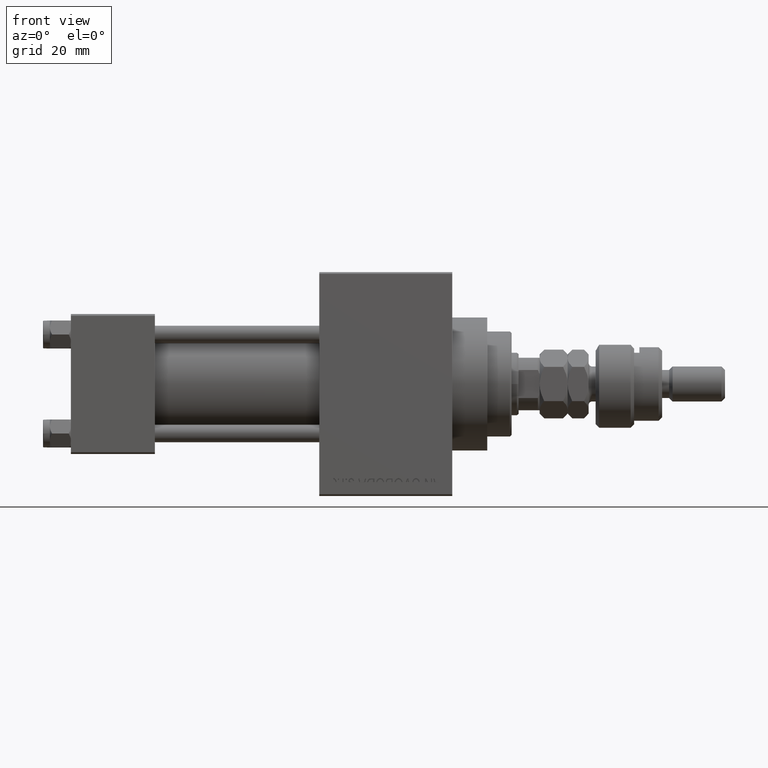
[diagram: clean part render]
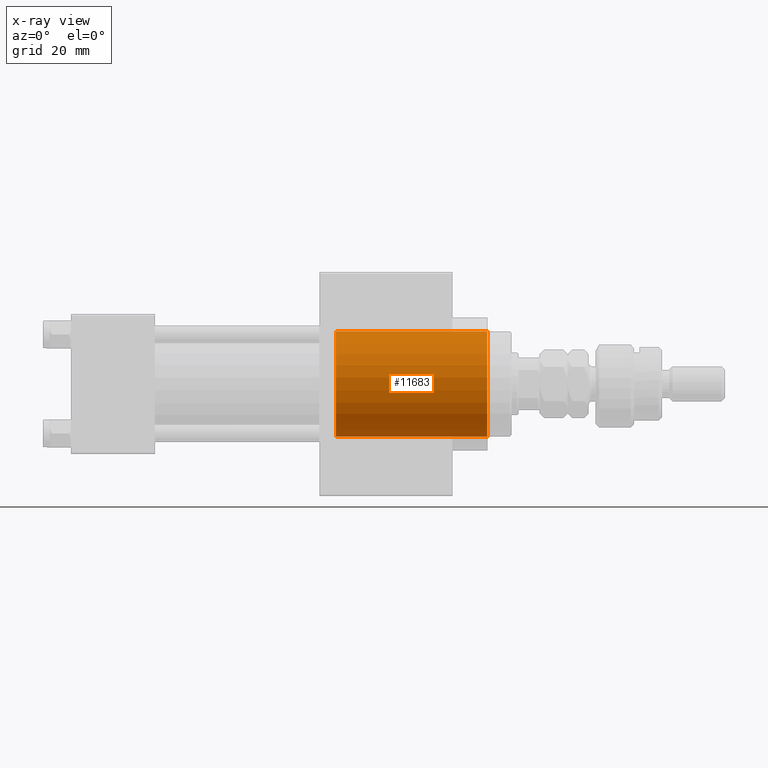
[diagram: x-ray — body ghosted, one internal face saturated and labeled with its STEP entity id]
A machine part, front view, then the same camera in x-ray: the body is ghosted and one INTERNAL B-rep face — a face not visible from any outside direction — is saturated and labeled: STEP entity #11683.
In plain terms, the highlighted cylindrical surface (partial cylindrical patch) has radius 15 mm, axis along (1, 0, 0).
Its self-contained STEP definition (entity closure, byte-faithful):
#93 = VECTOR ( 'NONE', #14677, 1000.000000000000000 ) ;
#1261 = CARTESIAN_POINT ( 'NONE',  ( 119.0000000000000142, 0.000000000000000000, -15.00000000000000000 ) ) ;
#2148 = VERTEX_POINT ( 'NONE', #1261 ) ;
#2258 = AXIS2_PLACEMENT_3D ( 'NONE', #14970, #30355, #15467 ) ;
#2507 = LINE ( 'NONE', #24978, #49239 ) ;
#2608 = VERTEX_POINT ( 'NONE', #10460 ) ;
#4161 = DIRECTION ( 'NONE',  ( 1.000000000000000000, 0.000000000000000000, 0.000000000000000000 ) ) ;
#4412 = EDGE_CURVE ( 'NONE', #2608, #2148, #13570, .T. ) ;
#4997 = ORIENTED_EDGE ( 'NONE', *, *, #11185, .F. ) ;
#5441 = CYLINDRICAL_SURFACE ( 'NONE', #32982, 15.00000000000000000 ) ;
#9475 = DIRECTION ( 'NONE',  ( 0.000000000000000000, 0.000000000000000000, -1.000000000000000000 ) ) ;
#9984 = EDGE_LOOP ( 'NONE', ( #44457, #25422, #19377, #4997 ) ) ;
#10460 = CARTESIAN_POINT ( 'NONE',  ( 119.0000000000000142, 1.836970198721029589E-15, 15.00000000000000000 ) ) ;
#11185 = EDGE_CURVE ( 'NONE', #36011, #2148, #25299, .T. ) ;
#11683 = ADVANCED_FACE ( 'NONE', ( #39976 ), #5441, .F. ) ;
#11983 = CARTESIAN_POINT ( 'NONE',  ( 75.73999999999999488, 0.000000000000000000, 0.000000000000000000 ) ) ;
#13570 = CIRCLE ( 'NONE', #2258, 15.00000000000000000 ) ;
#14677 = DIRECTION ( 'NONE',  ( 1.000000000000000000, -0.000000000000000000, -0.000000000000000000 ) ) ;
#14970 = CARTESIAN_POINT ( 'NONE',  ( 119.0000000000000142, 0.000000000000000000, 0.000000000000000000 ) ) ;
#15467 = DIRECTION ( 'NONE',  ( 0.000000000000000000, 0.000000000000000000, -1.000000000000000000 ) ) ;
#16714 = EDGE_CURVE ( 'NONE', #45506, #2608, #2507, .T. ) ;
#19377 = ORIENTED_EDGE ( 'NONE', *, *, #4412, .T. ) ;
#20843 = CARTESIAN_POINT ( 'NONE',  ( 75.73999999999999488, 0.000000000000000000, 0.000000000000000000 ) ) ;
#21523 = AXIS2_PLACEMENT_3D ( 'NONE', #11983, #4161, #30411 ) ;
#23964 = CARTESIAN_POINT ( 'NONE',  ( 75.73999999999999488, 1.836970198721029589E-15, 15.00000000000000000 ) ) ;
#24978 = CARTESIAN_POINT ( 'NONE',  ( 75.73999999999999488, 1.836970198721029589E-15, 15.00000000000000000 ) ) ;
#25299 = LINE ( 'NONE', #48465, #93 ) ;
#25422 = ORIENTED_EDGE ( 'NONE', *, *, #16714, .T. ) ;
#30355 = DIRECTION ( 'NONE',  ( 1.000000000000000000, 0.000000000000000000, 0.000000000000000000 ) ) ;
#30411 = DIRECTION ( 'NONE',  ( 0.000000000000000000, 0.000000000000000000, -1.000000000000000000 ) ) ;
#32982 = AXIS2_PLACEMENT_3D ( 'NONE', #20843, #36189, #9475 ) ;
#35874 = EDGE_CURVE ( 'NONE', #45506, #36011, #44033, .T. ) ;
#36011 = VERTEX_POINT ( 'NONE', #37159 ) ;
#36189 = DIRECTION ( 'NONE',  ( 1.000000000000000000, -0.000000000000000000, -0.000000000000000000 ) ) ;
#37159 = CARTESIAN_POINT ( 'NONE',  ( 75.73999999999999488, 0.000000000000000000, -15.00000000000000000 ) ) ;
#39976 = FACE_OUTER_BOUND ( 'NONE', #9984, .T. ) ;
#40095 = DIRECTION ( 'NONE',  ( 1.000000000000000000, -0.000000000000000000, -0.000000000000000000 ) ) ;
#44033 = CIRCLE ( 'NONE', #21523, 15.00000000000000000 ) ;
#44457 = ORIENTED_EDGE ( 'NONE', *, *, #35874, .F. ) ;
#45506 = VERTEX_POINT ( 'NONE', #23964 ) ;
#48465 = CARTESIAN_POINT ( 'NONE',  ( 75.73999999999999488, 0.000000000000000000, -15.00000000000000000 ) ) ;
#49239 = VECTOR ( 'NONE', #40095, 1000.000000000000000 ) ;